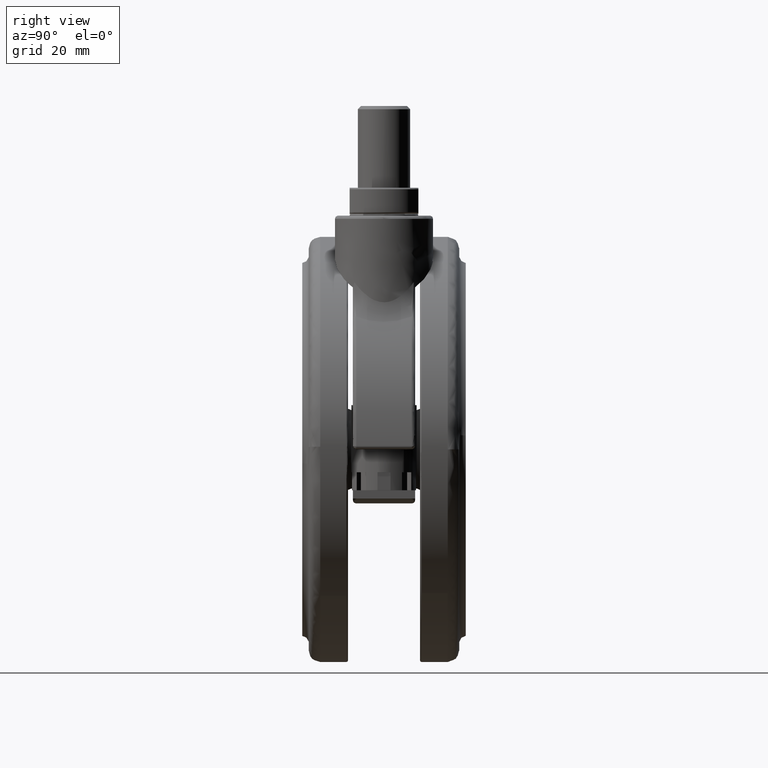
[diagram: clean part render]
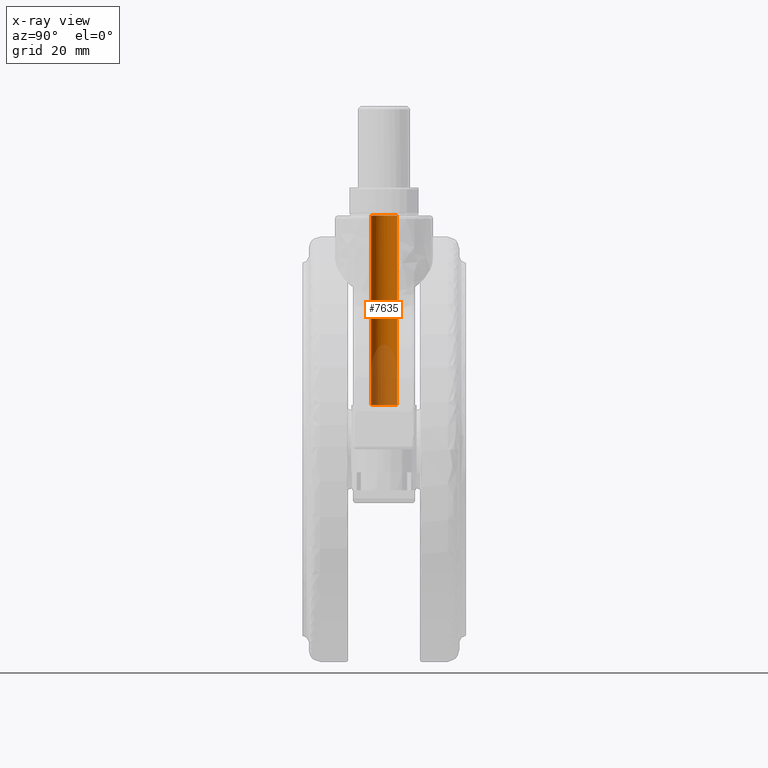
[diagram: x-ray — body ghosted, one internal face saturated and labeled with its STEP entity id]
A machine part, right view, then the same camera in x-ray: the body is ghosted and one INTERNAL B-rep face — a face not visible from any outside direction — is saturated and labeled: STEP entity #7635.
In plain terms, the highlighted face is a freeform B-spline surface patch.
Its self-contained STEP definition (entity closure, byte-faithful):
#7447=CARTESIAN_POINT('',(-4.000000000000227,0.0,0.0));
#7448=VERTEX_POINT('',#7447);
#7449=CARTESIAN_POINT('',(-0.034906142959608,3.999847692248255,-1.665335E-015));
#7450=VERTEX_POINT('',#7449);
#7451=CARTESIAN_POINT('',(-4.000000000000227,0.0,0.0));
#7452=CARTESIAN_POINT('',(-4.000000000000227,3.965244841422347,0.0));
#7453=CARTESIAN_POINT('',(-0.034906142959608,3.999847692248256,0.0));
#7461=(BOUNDED_CURVE()B_SPLINE_CURVE(2,(#7451,#7452,#7453),.UNSPECIFIED.,.F.,.U.)B_SPLINE_CURVE_WITH_KNOTS((3,3),(0.0,0.248460105622478),.UNSPECIFIED.)CURVE()GEOMETRIC_REPRESENTATION_ITEM()RATIONAL_B_SPLINE_CURVE((1.0,0.708910879670008,0.996414028001968))REPRESENTATION_ITEM(''));
#7462=EDGE_CURVE('',#7448,#7450,#7461,.T.);
#7464=CARTESIAN_POINT('',(0.034906142959153,-3.999847692248255,-1.665335E-015));
#7465=VERTEX_POINT('',#7464);
#7466=CARTESIAN_POINT('',(0.034906142959152,-3.999847692248256,0.0));
#7467=CARTESIAN_POINT('',(0.017453403765548,-4.0,0.0));
#7468=CARTESIAN_POINT('',(-2.273737E-013,-4.0,0.0));
#7469=CARTESIAN_POINT('',(-4.000000000000227,-4.000000000000000,0.0));
#7470=CARTESIAN_POINT('',(-4.000000000000227,0.0,0.0));
#7478=(BOUNDED_CURVE()B_SPLINE_CURVE(2,(#7466,#7467,#7468,#7469,#7470),.UNSPECIFIED.,.F.,.U.)B_SPLINE_CURVE_WITH_KNOTS((3,2,3),(0.748460105622478,0.750000000000000,1.0),.UNSPECIFIED.)CURVE()GEOMETRIC_REPRESENTATION_ITEM()RATIONAL_B_SPLINE_CURVE((0.996414028001968,0.998195901516539,1.0,0.707106781186548,1.0))REPRESENTATION_ITEM(''));
#7479=EDGE_CURVE('',#7465,#7448,#7478,.T.);
#7532=CARTESIAN_POINT('',(0.034906143017992,-3.999847692247742,-58.0));
#7533=VERTEX_POINT('',#7532);
#7549=CARTESIAN_POINT('',(-0.034906143018445,3.999847692247742,-58.0));
#7550=VERTEX_POINT('',#7549);
#7566=CARTESIAN_POINT('',(-0.034906143018445,3.999847692247742,-58.0));
#7567=CARTESIAN_POINT('',(-0.034906142959608,3.999847692248255,-1.665335E-015));
#7568=QUASI_UNIFORM_CURVE('',1,(#7566,#7567),.UNSPECIFIED.,.F.,.U.);
#7569=EDGE_CURVE('',#7550,#7450,#7568,.T.);
#7573=CARTESIAN_POINT('',(0.034906143017992,-3.999847692247742,-58.0));
#7574=CARTESIAN_POINT('',(0.034906142959153,-3.999847692248255,-1.665335E-015));
#7575=QUASI_UNIFORM_CURVE('',1,(#7573,#7574),.UNSPECIFIED.,.F.,.U.);
#7576=EDGE_CURVE('',#7533,#7465,#7575,.T.);
#7581=CARTESIAN_POINT('',(-0.034906141993723,3.999847692256684,-59.450000000000010));
#7582=CARTESIAN_POINT('',(-4.034753834250407,3.964941550263188,-59.450000000000010));
#7583=CARTESIAN_POINT('',(-3.999847692256911,-0.034906141993496,-59.450000000000010));
#7584=CARTESIAN_POINT('',(-3.964941550263416,-4.034753834250179,-59.450000000000010));
#7585=CARTESIAN_POINT('',(0.034906141993268,-3.999847692256684,-59.450000000000010));
#7586=CARTESIAN_POINT('',(-0.034906141993723,3.999847692256684,1.486250000000005));
#7587=CARTESIAN_POINT('',(-4.034753834250407,3.964941550263188,1.486250000000005));
#7588=CARTESIAN_POINT('',(-3.999847692256911,-0.034906141993496,1.486250000000005));
#7589=CARTESIAN_POINT('',(-3.964941550263416,-4.034753834250179,1.486250000000005));
#7590=CARTESIAN_POINT('',(0.034906141993268,-3.999847692256684,1.486250000000005));
#7598=(BOUNDED_SURFACE()B_SPLINE_SURFACE(2,1,((#7581,#7586),(#7582,#7587),(#7583,#7588),(#7584,#7589),(#7585,#7590)),.UNSPECIFIED.,.F.,.F.,.U.)B_SPLINE_SURFACE_WITH_KNOTS((3,2,3),(2,2),(0.0,6.627416997969519,13.254833995939039),(0.0,60.936250000000022),.UNSPECIFIED.)GEOMETRIC_REPRESENTATION_ITEM()RATIONAL_B_SPLINE_SURFACE(((1.0,1.0),(0.707106781186548,0.707106781186548),(1.0,1.0),(0.707106781186548,0.707106781186548),(1.0,1.0)))REPRESENTATION_ITEM('')SURFACE());
#7599=CARTESIAN_POINT('',(-4.000000000000227,0.0,-58.0));
#7600=VERTEX_POINT('',#7599);
#7601=CARTESIAN_POINT('',(-4.000000000000227,0.0,-58.0));
#7602=CARTESIAN_POINT('',(-4.000000000000227,-4.000000000000000,-58.0));
#7603=CARTESIAN_POINT('',(-2.273737E-013,-4.0,-58.0));
#7604=CARTESIAN_POINT('',(0.017453403794969,-4.000000000000000,-58.0));
#7605=CARTESIAN_POINT('',(0.034906143017991,-3.999847692247743,-57.999999999999993));
#7613=(BOUNDED_CURVE()B_SPLINE_CURVE(2,(#7601,#7602,#7603,#7604,#7605),.UNSPECIFIED.,.F.,.U.)B_SPLINE_CURVE_WITH_KNOTS((3,2,3),(0.0,0.250000000000000,0.251539894380113),.UNSPECIFIED.)CURVE()GEOMETRIC_REPRESENTATION_ITEM()RATIONAL_B_SPLINE_CURVE((1.0,0.707106781186548,1.0,0.998195901513504,0.996414027995971))REPRESENTATION_ITEM(''));
#7614=EDGE_CURVE('',#7600,#7533,#7613,.T.);
#7615=ORIENTED_EDGE('',*,*,#7614,.T.);
#7616=ORIENTED_EDGE('',*,*,#7576,.T.);
#7617=ORIENTED_EDGE('',*,*,#7479,.T.);
#7618=ORIENTED_EDGE('',*,*,#7462,.T.);
#7619=ORIENTED_EDGE('',*,*,#7569,.F.);
#7620=CARTESIAN_POINT('',(-0.034906143018444,3.999847692247743,-58.0));
#7621=CARTESIAN_POINT('',(-4.000000000000228,3.965244841364018,-58.000000000000007));
#7622=CARTESIAN_POINT('',(-4.000000000000227,0.0,-58.0));
#7630=(BOUNDED_CURVE()B_SPLINE_CURVE(2,(#7620,#7621,#7622),.UNSPECIFIED.,.F.,.U.)B_SPLINE_CURVE_WITH_KNOTS((3,3),(0.751539894380113,1.0),.UNSPECIFIED.)CURVE()GEOMETRIC_REPRESENTATION_ITEM()RATIONAL_B_SPLINE_CURVE((0.996414027995972,0.708910879673044,1.0))REPRESENTATION_ITEM(''));
#7631=EDGE_CURVE('',#7550,#7600,#7630,.T.);
#7632=ORIENTED_EDGE('',*,*,#7631,.T.);
#7633=EDGE_LOOP('',(#7615,#7616,#7617,#7618,#7619,#7632));
#7634=FACE_OUTER_BOUND('',#7633,.T.);
#7635=ADVANCED_FACE('',(#7634),#7598,.T.);